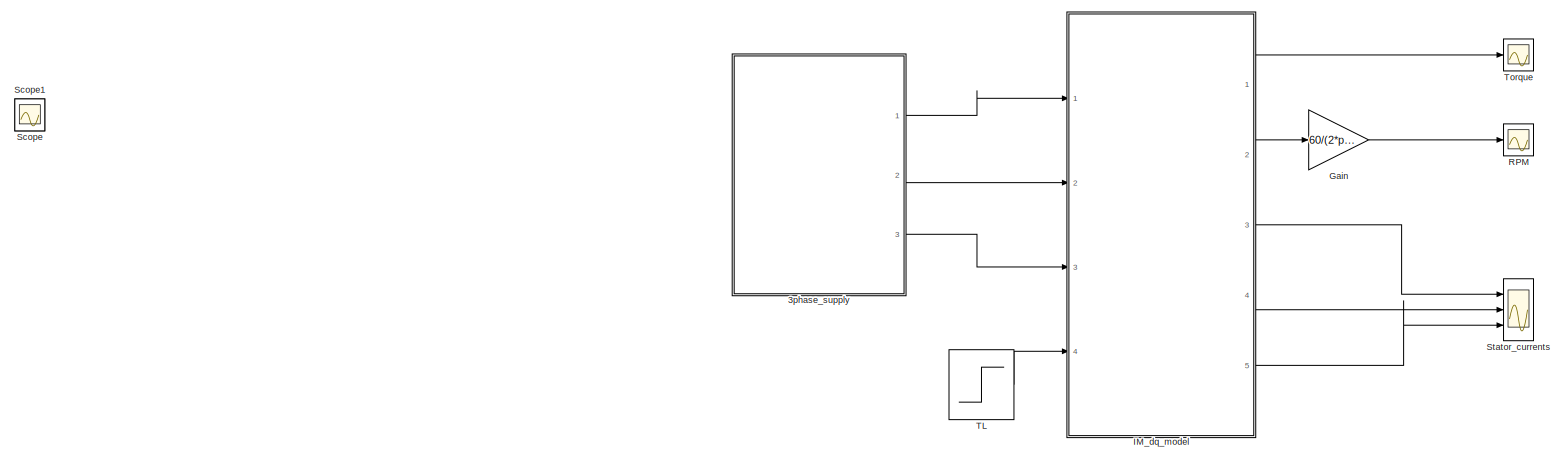
[diagram: root canvas - part 1/1, most of the canvas]
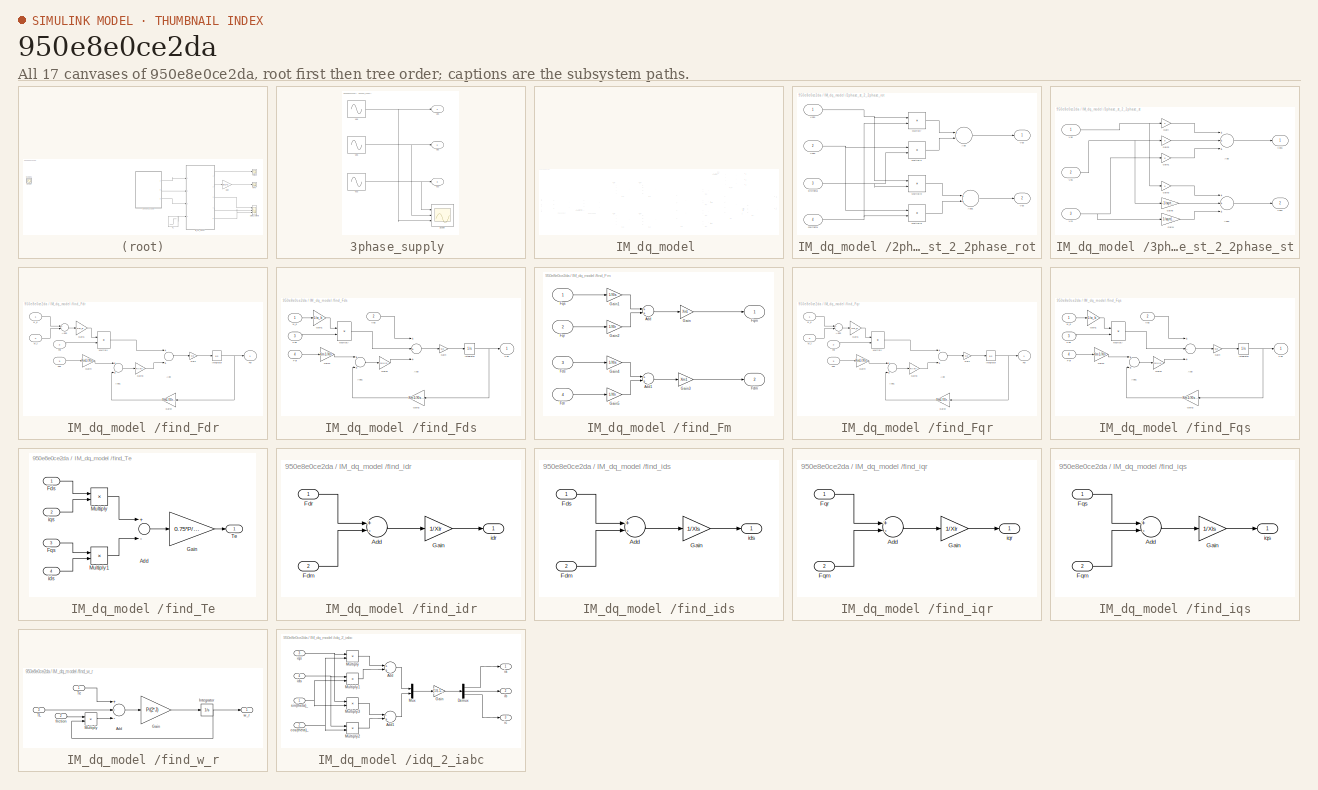
[diagram: thumbnail index - all 17 canvases of the model, root first then tree order]
MODEL slx_950e8e0ce2da
KIND model
CONFIG AbsTol = auto
CONFIG EnableMultiTasking = off
CONFIG FixedStep = 0.0001
CONFIG MaxStep = auto
CONFIG MinStep = auto
CONFIG RelTol = 1e-3
CONFIG SampleTimeConstraint = Unconstrained
CONFIG Solver = ode45
CONFIG SolverName = ode45
CONFIG StartTime = 0.0
CONFIG StopTime = 6
BLOCK [SubSystem] 3phase_supply 
  Ports = [0, 3]
  RequestExecContextInheritance = off
BLOCK [Scope] 3phase_supply /Scope
  Floating = off
  NumInputPorts = 3
  Ports = [3]
  ScopeSpecificationString = Simulink.scopes.TimeScopeBlockCfg('CurrentConfiguration', extmgr.ConfigurationSet(extmgr.Configuration('Core','General UI',true),extmgr.Configuration('Core','Source UI',true),extmgr.Configuration('Sources','WiredSimulink',true),extmgr.Configuration('Visuals','Time Domain',true,'SerializedDisplays',{struct('MinYLimReal','-433.0127','MaxYLimReal','433.0127','YLabelReal','','MinYLimMag',' 0.00000','M...<+1362ch>
BLOCK [Outport] 3phase_supply /Vas
  IconDisplay = Port number
BLOCK [Outport] 3phase_supply /Vbs
  IconDisplay = Port number
  Port = 2
BLOCK [Outport] 3phase_supply /Vcs
  IconDisplay = Port number
  Port = 3
BLOCK [Sin] 3phase_supply /vas
  Amplitude = Vm
  Frequency = w_e
  Ports = [0, 1]
  SampleTime = 0
BLOCK [Sin] 3phase_supply /vbs
  Amplitude = Vm
  Frequency = w_e
  Phase = -2*pi/3
  Ports = [0, 1]
  SampleTime = 0
BLOCK [Sin] 3phase_supply /vcs
  Amplitude = Vm
  Frequency = w_e
  Phase = 2*pi/3
  Ports = [0, 1]
  SampleTime = 0
BLOCK [Gain] Gain
  Gain = 60/(2*pi)
  OutDataTypeStr = Inherit: Inherit via internal rule
  ParamDataTypeStr = Inherit: Inherit via internal rule
  SaturateOnIntegerOverflow = off
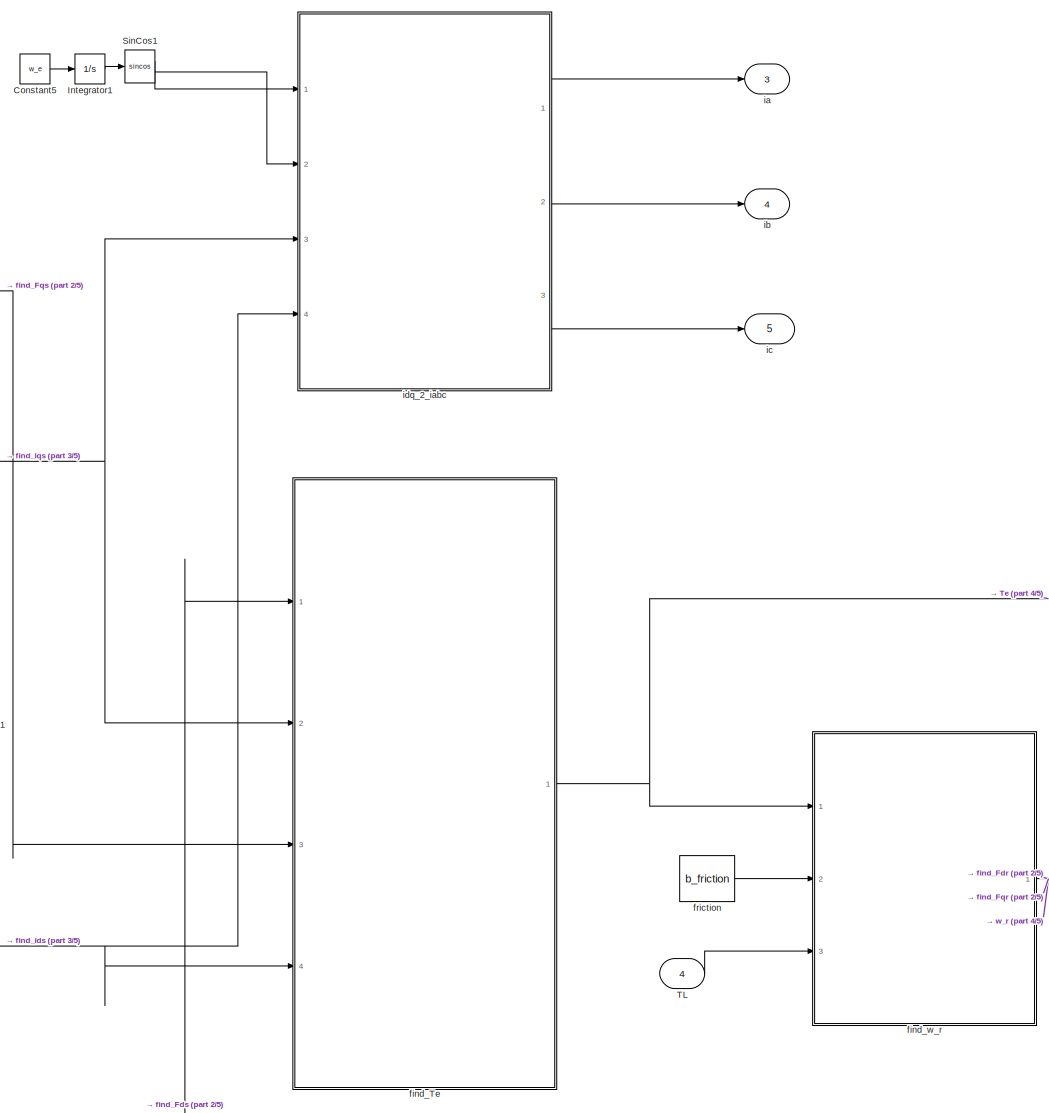
[diagram: IM_dq_model  - part 1/5, right side, full height]
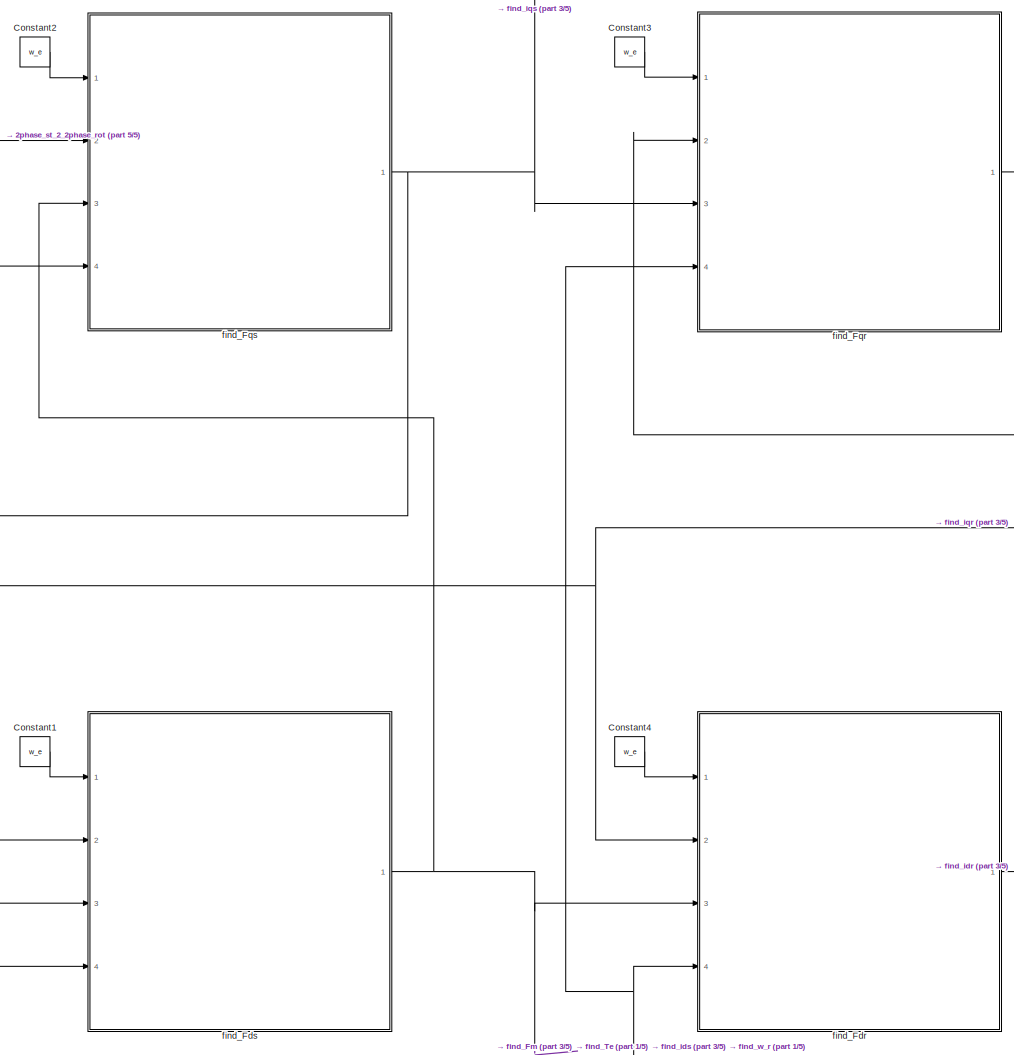
[diagram: IM_dq_model  - part 2/5, central region]
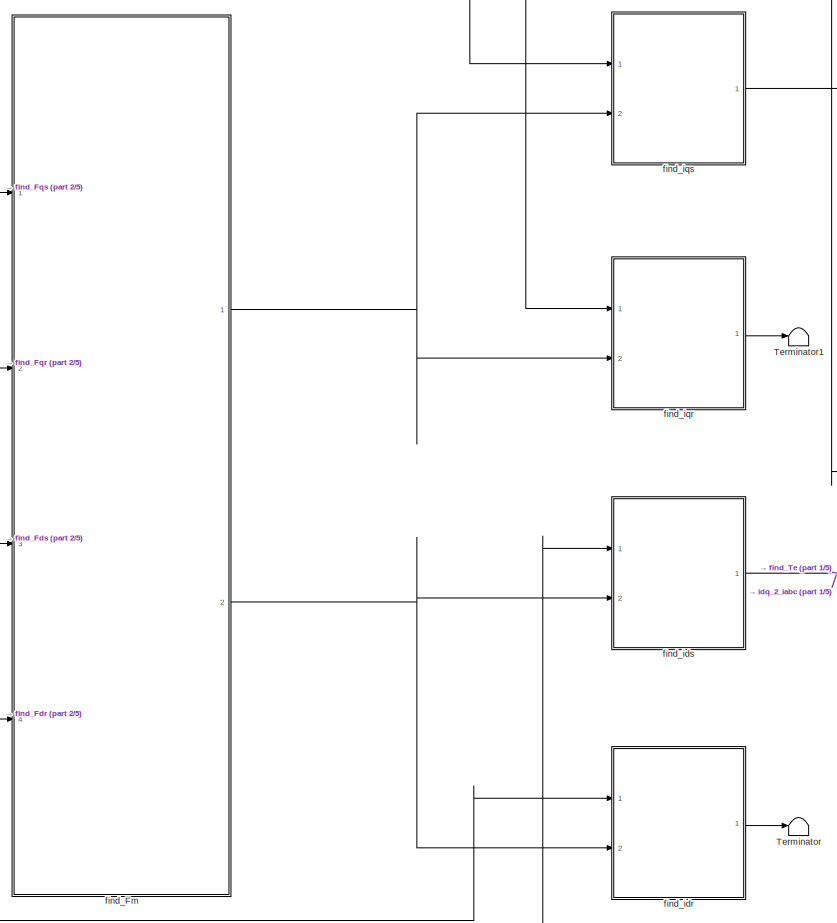
[diagram: IM_dq_model  - part 3/5, central region]
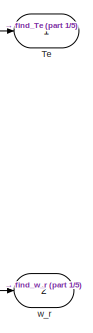
[diagram: IM_dq_model  - part 4/5, middle right region]
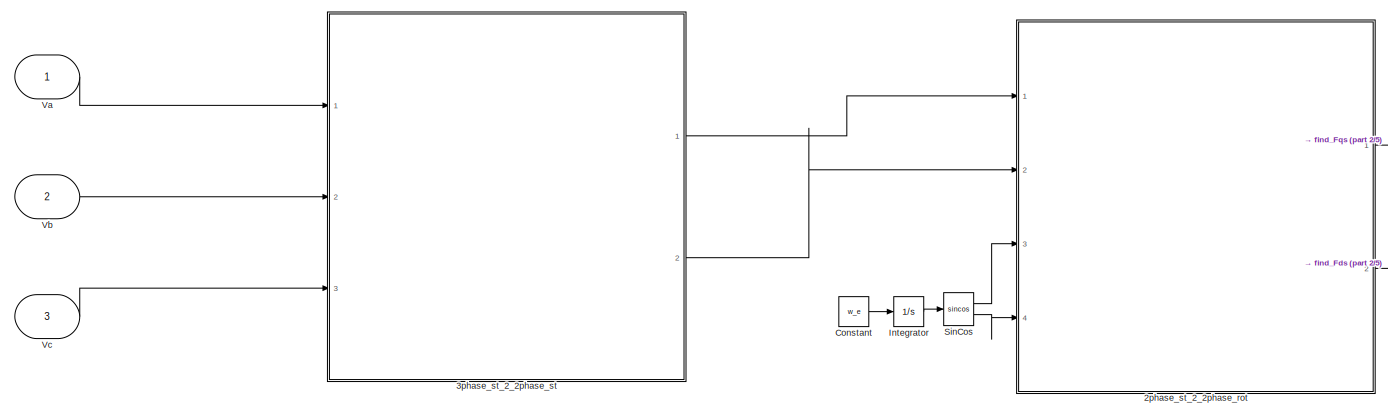
[diagram: IM_dq_model  - part 5/5, middle left region]
BLOCK [SubSystem] IM_dq_model 
  Ports = [4, 5]
  RequestExecContextInheritance = off
BLOCK [SubSystem] IM_dq_model /2phase_st_2_2phase_rot
  Ports = [4, 2]
  RequestExecContextInheritance = off
BLOCK [Sum] IM_dq_model /2phase_st_2_2phase_rot/Add
  InputSameDT = off
  Inputs = +-
  OutDataTypeStr = Inherit: Inherit via internal rule
  Ports = [2, 1]
  SaturateOnIntegerOverflow = off
BLOCK [Sum] IM_dq_model /2phase_st_2_2phase_rot/Add1
  InputSameDT = off
  OutDataTypeStr = Inherit: Inherit via internal rule
  Ports = [2, 1]
  SaturateOnIntegerOverflow = off
BLOCK [Product] IM_dq_model /2phase_st_2_2phase_rot/Multiply
  InputSameDT = off
  OutDataTypeStr = Inherit: Inherit via internal rule
  Ports = [2, 1]
  RndMeth = Floor
  SaturateOnIntegerOverflow = off
BLOCK [Product] IM_dq_model /2phase_st_2_2phase_rot/Multiply1
  InputSameDT = off
  OutDataTypeStr = Inherit: Inherit via internal rule
  Ports = [2, 1]
  RndMeth = Floor
  SaturateOnIntegerOverflow = off
BLOCK [Product] IM_dq_model /2phase_st_2_2phase_rot/Multiply2
  InputSameDT = off
  OutDataTypeStr = Inherit: Inherit via internal rule
  Ports = [2, 1]
  RndMeth = Floor
  SaturateOnIntegerOverflow = off
BLOCK [Product] IM_dq_model /2phase_st_2_2phase_rot/Multiply3
  InputSameDT = off
  OutDataTypeStr = Inherit: Inherit via internal rule
  Ports = [2, 1]
  RndMeth = Floor
  SaturateOnIntegerOverflow = off
BLOCK [Outport] IM_dq_model /2phase_st_2_2phase_rot/Vds
  IconDisplay = Port number
  Port = 2
BLOCK [Inport] IM_dq_model /2phase_st_2_2phase_rot/Vdss
  IconDisplay = Port number
  Port = 2
BLOCK [Outport] IM_dq_model /2phase_st_2_2phase_rot/Vqs
  IconDisplay = Port number
BLOCK [Inport] IM_dq_model /2phase_st_2_2phase_rot/Vqss
  IconDisplay = Port number
BLOCK [Inport] IM_dq_model /2phase_st_2_2phase_rot/cos(theta)
  IconDisplay = Port number
  Port = 4
BLOCK [Inport] IM_dq_model /2phase_st_2_2phase_rot/sin(theta)
  IconDisplay = Port number
  Port = 3
BLOCK [SubSystem] IM_dq_model /3phase_st_2_2phase_st
  Ports = [3, 2]
  RequestExecContextInheritance = off
BLOCK [Sum] IM_dq_model /3phase_st_2_2phase_st/Add
  InputSameDT = off
  Inputs = +++
  OutDataTypeStr = Inherit: Inherit via internal rule
  Ports = [3, 1]
  SaturateOnIntegerOverflow = off
BLOCK [Sum] IM_dq_model /3phase_st_2_2phase_st/Add1
  InputSameDT = off
  Inputs = +++
  OutDataTypeStr = Inherit: Inherit via internal rule
  Ports = [3, 1]
  SaturateOnIntegerOverflow = off
BLOCK [Gain] IM_dq_model /3phase_st_2_2phase_st/Gain
  OutDataTypeStr = Inherit: Inherit via internal rule
  ParamDataTypeStr = Inherit: Inherit via internal rule
  SaturateOnIntegerOverflow = off
BLOCK [Gain] IM_dq_model /3phase_st_2_2phase_st/Gain1
  Gain = 0
  OutDataTypeStr = Inherit: Inherit via internal rule
  ParamDataTypeStr = Inherit: Inherit via internal rule
  SaturateOnIntegerOverflow = off
BLOCK [Gain] IM_dq_model /3phase_st_2_2phase_st/Gain2
  Gain = 0
  OutDataTypeStr = Inherit: Inherit via internal rule
  ParamDataTypeStr = Inherit: Inherit via internal rule
  SaturateOnIntegerOverflow = off
BLOCK [Gain] IM_dq_model /3phase_st_2_2phase_st/Gain3
  Gain = 0
  OutDataTypeStr = Inherit: Inherit via internal rule
  ParamDataTypeStr = Inherit: Inherit via internal rule
  SaturateOnIntegerOverflow = off
BLOCK [Gain] IM_dq_model /3phase_st_2_2phase_st/Gain4
  Gain = 1/sqrt(3)
  OutDataTypeStr = Inherit: Inherit via internal rule
  ParamDataTypeStr = Inherit: Inherit via internal rule
  SaturateOnIntegerOverflow = off
BLOCK [Gain] IM_dq_model /3phase_st_2_2phase_st/Gain5
  Gain = -1/sqrt(3)
  OutDataTypeStr = Inherit: Inherit via internal rule
  ParamDataTypeStr = Inherit: Inherit via internal rule
  SaturateOnIntegerOverflow = off
BLOCK [Inport] IM_dq_model /3phase_st_2_2phase_st/Vas
  IconDisplay = Port number
BLOCK [Inport] IM_dq_model /3phase_st_2_2phase_st/Vbs
  IconDisplay = Port number
  Port = 2
BLOCK [Inport] IM_dq_model /3phase_st_2_2phase_st/Vcs
  IconDisplay = Port number
  Port = 3
BLOCK [Outport] IM_dq_model /3phase_st_2_2phase_st/Vdss
  IconDisplay = Port number
  Port = 2
BLOCK [Outport] IM_dq_model /3phase_st_2_2phase_st/Vqss
  IconDisplay = Port number
BLOCK [Constant] IM_dq_model /Constant
  Value = w_e
BLOCK [Constant] IM_dq_model /Constant1
  Value = w_e
BLOCK [Constant] IM_dq_model /Constant2
  Value = w_e
BLOCK [Constant] IM_dq_model /Constant3
  Value = w_e
BLOCK [Constant] IM_dq_model /Constant4
  Value = w_e
BLOCK [Constant] IM_dq_model /Constant5
  Value = w_e
BLOCK [Integrator] IM_dq_model /Integrator
  Ports = [1, 1]
BLOCK [Integrator] IM_dq_model /Integrator1
  Ports = [1, 1]
BLOCK [Trigonometry] IM_dq_model /SinCos
  Operator = sincos
  Ports = [1, 2]
BLOCK [Trigonometry] IM_dq_model /SinCos1
  Operator = sincos
  Ports = [1, 2]
BLOCK [Inport] IM_dq_model /TL 
  IconDisplay = Port number
  Port = 4
BLOCK [Outport] IM_dq_model /Te
  IconDisplay = Port number
BLOCK [Terminator] IM_dq_model /Terminator
BLOCK [Terminator] IM_dq_model /Terminator1
BLOCK [Inport] IM_dq_model /Va
  IconDisplay = Port number
BLOCK [Inport] IM_dq_model /Vb
  IconDisplay = Port number
  Port = 2
BLOCK [Inport] IM_dq_model /Vc
  IconDisplay = Port number
  Port = 3
BLOCK [SubSystem] IM_dq_model /find_Fdr
  Ports = [4, 1]
  RequestExecContextInheritance = off
BLOCK [Sum] IM_dq_model /find_Fdr/Add
  InputSameDT = off
  OutDataTypeStr = Inherit: Inherit via internal rule
  Ports = [2, 1]
  SaturateOnIntegerOverflow = off
BLOCK [Sum] IM_dq_model /find_Fdr/Add1
  InputSameDT = off
  OutDataTypeStr = Inherit: Inherit via internal rule
  Ports = [2, 1]
  SaturateOnIntegerOverflow = off
BLOCK [Sum] IM_dq_model /find_Fdr/Add2
  InputSameDT = off
  Inputs = +-
  OutDataTypeStr = Inherit: Inherit via internal rule
  Ports = [2, 1]
  SaturateOnIntegerOverflow = off
BLOCK [Outport] IM_dq_model /find_Fdr/Fdr 
  IconDisplay = Port number
BLOCK [Inport] IM_dq_model /find_Fdr/Fds
  IconDisplay = Port number
  Port = 3
BLOCK [Inport] IM_dq_model /find_Fdr/Fqr
  IconDisplay = Port number
  Port = 2
BLOCK [Gain] IM_dq_model /find_Fdr/Gain
  Gain = w_b
  OutDataTypeStr = Inherit: Inherit via internal rule
  ParamDataTypeStr = Inherit: Inherit via internal rule
  SaturateOnIntegerOverflow = off
BLOCK [Gain] IM_dq_model /find_Fdr/Gain1
  Gain = 1/w_b
  OutDataTypeStr = Inherit: Inherit via internal rule
  ParamDataTypeStr = Inherit: Inherit via internal rule
  SaturateOnIntegerOverflow = off
BLOCK [Gain] IM_dq_model /find_Fdr/Gain2
  Gain = Xm1/Xlr-1
  OutDataTypeStr = Inherit: Inherit via internal rule
  ParamDataTypeStr = Inherit: Inherit via internal rule
  SaturateOnIntegerOverflow = off
BLOCK [Gain] IM_dq_model /find_Fdr/Gain3
  Gain = Rr/Xlr
  OutDataTypeStr = Inherit: Inherit via internal rule
  ParamDataTypeStr = Inherit: Inherit via internal rule
  SaturateOnIntegerOverflow = off
BLOCK [Gain] IM_dq_model /find_Fdr/Gain4
  Gain = Xm1/Xls
  OutDataTypeStr = Inherit: Inherit via internal rule
  ParamDataTypeStr = Inherit: Inherit via internal rule
  SaturateOnIntegerOverflow = off
BLOCK [Integrator] IM_dq_model /find_Fdr/Integrator
  Ports = [1, 1]
BLOCK [Product] IM_dq_model /find_Fdr/Multiply
  InputSameDT = off
  OutDataTypeStr = Inherit: Inherit via internal rule
  Ports = [2, 1]
  RndMeth = Floor
  SaturateOnIntegerOverflow = off
BLOCK [Inport] IM_dq_model /find_Fdr/w_e
  IconDisplay = Port number
BLOCK [Inport] IM_dq_model /find_Fdr/w_r
  IconDisplay = Port number
  Port = 4
BLOCK [SubSystem] IM_dq_model /find_Fds
  Ports = [4, 1]
  RequestExecContextInheritance = off
BLOCK [Sum] IM_dq_model /find_Fds/Add
  InputSameDT = off
  Inputs = +++
  OutDataTypeStr = Inherit: Inherit via internal rule
  Ports = [3, 1]
  SaturateOnIntegerOverflow = off
BLOCK [Sum] IM_dq_model /find_Fds/Add1
  InputSameDT = off
  OutDataTypeStr = Inherit: Inherit via internal rule
  Ports = [2, 1]
  SaturateOnIntegerOverflow = off
BLOCK [Inport] IM_dq_model /find_Fds/Fdr
  IconDisplay = Port number
  Port = 4
BLOCK [Outport] IM_dq_model /find_Fds/Fds 
  IconDisplay = Port number
BLOCK [Inport] IM_dq_model /find_Fds/Fqs
  IconDisplay = Port number
  Port = 3
BLOCK [Gain] IM_dq_model /find_Fds/Gain
  Gain = w_b
  OutDataTypeStr = Inherit: Inherit via internal rule
  ParamDataTypeStr = Inherit: Inherit via internal rule
  SaturateOnIntegerOverflow = off
BLOCK [Gain] IM_dq_model /find_Fds/Gain1
  Gain = 1/w_b
  OutDataTypeStr = Inherit: Inherit via internal rule
  ParamDataTypeStr = Inherit: Inherit via internal rule
  SaturateOnIntegerOverflow = off
BLOCK [Gain] IM_dq_model /find_Fds/Gain2
  Gain = Xm1/Xls-1
  OutDataTypeStr = Inherit: Inherit via internal rule
  ParamDataTypeStr = Inherit: Inherit via internal rule
  SaturateOnIntegerOverflow = off
BLOCK [Gain] IM_dq_model /find_Fds/Gain3
  Gain = Rs/Xls
  OutDataTypeStr = Inherit: Inherit via internal rule
  ParamDataTypeStr = Inherit: Inherit via internal rule
  SaturateOnIntegerOverflow = off
BLOCK [Gain] IM_dq_model /find_Fds/Gain4
  Gain = Xm1/Xlr
  OutDataTypeStr = Inherit: Inherit via internal rule
  ParamDataTypeStr = Inherit: Inherit via internal rule
  SaturateOnIntegerOverflow = off
BLOCK [Integrator] IM_dq_model /find_Fds/Integrator
  Ports = [1, 1]
BLOCK [Product] IM_dq_model /find_Fds/Multiply
  InputSameDT = off
  OutDataTypeStr = Inherit: Inherit via internal rule
  Ports = [2, 1]
  RndMeth = Floor
  SaturateOnIntegerOverflow = off
BLOCK [Inport] IM_dq_model /find_Fds/Vds
  IconDisplay = Port number
  Port = 2
BLOCK [Inport] IM_dq_model /find_Fds/w_e
  IconDisplay = Port number
BLOCK [SubSystem] IM_dq_model /find_Fm
  Ports = [4, 2]
  RequestExecContextInheritance = off
BLOCK [Sum] IM_dq_model /find_Fm/Add
  InputSameDT = off
  OutDataTypeStr = Inherit: Inherit via internal rule
  Ports = [2, 1]
  SaturateOnIntegerOverflow = off
BLOCK [Sum] IM_dq_model /find_Fm/Add1
  InputSameDT = off
  OutDataTypeStr = Inherit: Inherit via internal rule
  Ports = [2, 1]
  SaturateOnIntegerOverflow = off
BLOCK [Outport] IM_dq_model /find_Fm/Fdm
  IconDisplay = Port number
  Port = 2
BLOCK [Inport] IM_dq_model /find_Fm/Fdr
  IconDisplay = Port number
  Port = 4
BLOCK [Inport] IM_dq_model /find_Fm/Fds
  IconDisplay = Port number
  Port = 3
BLOCK [Outport] IM_dq_model /find_Fm/Fqm
  IconDisplay = Port number
BLOCK [Inport] IM_dq_model /find_Fm/Fqr
  IconDisplay = Port number
  Port = 2
BLOCK [Inport] IM_dq_model /find_Fm/Fqs
  IconDisplay = Port number
BLOCK [Gain] IM_dq_model /find_Fm/Gain
  Gain = Xm1
  OutDataTypeStr = Inherit: Inherit via internal rule
  ParamDataTypeStr = Inherit: Inherit via internal rule
  SaturateOnIntegerOverflow = off
BLOCK [Gain] IM_dq_model /find_Fm/Gain1
  Gain = 1/Xls
  OutDataTypeStr = Inherit: Inherit via internal rule
  ParamDataTypeStr = Inherit: Inherit via internal rule
  SaturateOnIntegerOverflow = off
BLOCK [Gain] IM_dq_model /find_Fm/Gain2
  Gain = 1/Xlr
  OutDataTypeStr = Inherit: Inherit via internal rule
  ParamDataTypeStr = Inherit: Inherit via internal rule
  SaturateOnIntegerOverflow = off
BLOCK [Gain] IM_dq_model /find_Fm/Gain3
  Gain = Xm1
  OutDataTypeStr = Inherit: Inherit via internal rule
  ParamDataTypeStr = Inherit: Inherit via internal rule
  SaturateOnIntegerOverflow = off
BLOCK [Gain] IM_dq_model /find_Fm/Gain4
  Gain = 1/Xls
  OutDataTypeStr = Inherit: Inherit via internal rule
  ParamDataTypeStr = Inherit: Inherit via internal rule
  SaturateOnIntegerOverflow = off
BLOCK [Gain] IM_dq_model /find_Fm/Gain5
  Gain = 1/Xlr
  OutDataTypeStr = Inherit: Inherit via internal rule
  ParamDataTypeStr = Inherit: Inherit via internal rule
  SaturateOnIntegerOverflow = off
BLOCK [SubSystem] IM_dq_model /find_Fqr
  Ports = [4, 1]
  RequestExecContextInheritance = off
BLOCK [Sum] IM_dq_model /find_Fqr/Add
  InputSameDT = off
  OutDataTypeStr = Inherit: Inherit via internal rule
  Ports = [2, 1]
  SaturateOnIntegerOverflow = off
BLOCK [Sum] IM_dq_model /find_Fqr/Add1
  InputSameDT = off
  OutDataTypeStr = Inherit: Inherit via internal rule
  Ports = [2, 1]
  SaturateOnIntegerOverflow = off
BLOCK [Sum] IM_dq_model /find_Fqr/Add2
  InputSameDT = off
  Inputs = +-
  OutDataTypeStr = Inherit: Inherit via internal rule
  Ports = [2, 1]
  SaturateOnIntegerOverflow = off
BLOCK [Inport] IM_dq_model /find_Fqr/Fdr
  IconDisplay = Port number
  Port = 2
BLOCK [Outport] IM_dq_model /find_Fqr/Fqr 
  IconDisplay = Port number
BLOCK [Inport] IM_dq_model /find_Fqr/Fqs
  IconDisplay = Port number
  Port = 3
BLOCK [Gain] IM_dq_model /find_Fqr/Gain
  Gain = w_b
  OutDataTypeStr = Inherit: Inherit via internal rule
  ParamDataTypeStr = Inherit: Inherit via internal rule
  SaturateOnIntegerOverflow = off
BLOCK [Gain] IM_dq_model /find_Fqr/Gain1
  Gain = -1/w_b
  OutDataTypeStr = Inherit: Inherit via internal rule
  ParamDataTypeStr = Inherit: Inherit via internal rule
  SaturateOnIntegerOverflow = off
BLOCK [Gain] IM_dq_model /find_Fqr/Gain2
  Gain = Xm1/Xlr-1
  OutDataTypeStr = Inherit: Inherit via internal rule
  ParamDataTypeStr = Inherit: Inherit via internal rule
  SaturateOnIntegerOverflow = off
BLOCK [Gain] IM_dq_model /find_Fqr/Gain3
  Gain = Rr/Xlr
  OutDataTypeStr = Inherit: Inherit via internal rule
  ParamDataTypeStr = Inherit: Inherit via internal rule
  SaturateOnIntegerOverflow = off
BLOCK [Gain] IM_dq_model /find_Fqr/Gain4
  Gain = Xm1/Xls
  OutDataTypeStr = Inherit: Inherit via internal rule
  ParamDataTypeStr = Inherit: Inherit via internal rule
  SaturateOnIntegerOverflow = off
BLOCK [Integrator] IM_dq_model /find_Fqr/Integrator
  Ports = [1, 1]
BLOCK [Product] IM_dq_model /find_Fqr/Multiply
  InputSameDT = off
  OutDataTypeStr = Inherit: Inherit via internal rule
  Ports = [2, 1]
  RndMeth = Floor
  SaturateOnIntegerOverflow = off
BLOCK [Inport] IM_dq_model /find_Fqr/w_e
  IconDisplay = Port number
BLOCK [Inport] IM_dq_model /find_Fqr/w_r
  IconDisplay = Port number
  Port = 4
BLOCK [SubSystem] IM_dq_model /find_Fqs
  Ports = [4, 1]
  RequestExecContextInheritance = off
BLOCK [Sum] IM_dq_model /find_Fqs/Add
  InputSameDT = off
  Inputs = +-+
  OutDataTypeStr = Inherit: Inherit via internal rule
  Ports = [3, 1]
  SaturateOnIntegerOverflow = off
BLOCK [Sum] IM_dq_model /find_Fqs/Add1
  InputSameDT = off
  OutDataTypeStr = Inherit: Inherit via internal rule
  Ports = [2, 1]
  SaturateOnIntegerOverflow = off
BLOCK [Inport] IM_dq_model /find_Fqs/Fds
  IconDisplay = Port number
  Port = 3
BLOCK [Inport] IM_dq_model /find_Fqs/Fqr
  IconDisplay = Port number
  Port = 4
BLOCK [Outport] IM_dq_model /find_Fqs/Fqs
  IconDisplay = Port number
BLOCK [Gain] IM_dq_model /find_Fqs/Gain
  Gain = w_b
  OutDataTypeStr = Inherit: Inherit via internal rule
  ParamDataTypeStr = Inherit: Inherit via internal rule
  SaturateOnIntegerOverflow = off
BLOCK [Gain] IM_dq_model /find_Fqs/Gain1
  Gain = 1/w_b
  OutDataTypeStr = Inherit: Inherit via internal rule
  ParamDataTypeStr = Inherit: Inherit via internal rule
  SaturateOnIntegerOverflow = off
BLOCK [Gain] IM_dq_model /find_Fqs/Gain2
  Gain = Xm1/Xls-1
  OutDataTypeStr = Inherit: Inherit via internal rule
  ParamDataTypeStr = Inherit: Inherit via internal rule
  SaturateOnIntegerOverflow = off
BLOCK [Gain] IM_dq_model /find_Fqs/Gain3
  Gain = Rs/Xls
  OutDataTypeStr = Inherit: Inherit via internal rule
  ParamDataTypeStr = Inherit: Inherit via internal rule
  SaturateOnIntegerOverflow = off
BLOCK [Gain] IM_dq_model /find_Fqs/Gain4
  Gain = Xm1/Xlr
  OutDataTypeStr = Inherit: Inherit via internal rule
  ParamDataTypeStr = Inherit: Inherit via internal rule
  SaturateOnIntegerOverflow = off
BLOCK [Integrator] IM_dq_model /find_Fqs/Integrator
  Ports = [1, 1]
BLOCK [Product] IM_dq_model /find_Fqs/Multiply
  InputSameDT = off
  OutDataTypeStr = Inherit: Inherit via internal rule
  Ports = [2, 1]
  RndMeth = Floor
  SaturateOnIntegerOverflow = off
BLOCK [Inport] IM_dq_model /find_Fqs/Vqs
  IconDisplay = Port number
  Port = 2
BLOCK [Inport] IM_dq_model /find_Fqs/w_e
  IconDisplay = Port number
BLOCK [SubSystem] IM_dq_model /find_Te
  Ports = [4, 1]
  RequestExecContextInheritance = off
BLOCK [Sum] IM_dq_model /find_Te/Add
  InputSameDT = off
  Inputs = +-
  OutDataTypeStr = Inherit: Inherit via internal rule
  Ports = [2, 1]
  SaturateOnIntegerOverflow = off
BLOCK [Inport] IM_dq_model /find_Te/Fds
  IconDisplay = Port number
BLOCK [Inport] IM_dq_model /find_Te/Fqs
  IconDisplay = Port number
  Port = 3
BLOCK [Gain] IM_dq_model /find_Te/Gain
  Gain = 0.75*P/w_b
  OutDataTypeStr = Inherit: Inherit via internal rule
  ParamDataTypeStr = Inherit: Inherit via internal rule
  SaturateOnIntegerOverflow = off
BLOCK [Product] IM_dq_model /find_Te/Multiply
  InputSameDT = off
  OutDataTypeStr = Inherit: Inherit via internal rule
  Ports = [2, 1]
  RndMeth = Floor
  SaturateOnIntegerOverflow = off
BLOCK [Product] IM_dq_model /find_Te/Multiply1
  InputSameDT = off
  OutDataTypeStr = Inherit: Inherit via internal rule
  Ports = [2, 1]
  RndMeth = Floor
  SaturateOnIntegerOverflow = off
BLOCK [Outport] IM_dq_model /find_Te/Te
  IconDisplay = Port number
BLOCK [Inport] IM_dq_model /find_Te/ids
  IconDisplay = Port number
  Port = 4
BLOCK [Inport] IM_dq_model /find_Te/iqs
  IconDisplay = Port number
  Port = 2
BLOCK [SubSystem] IM_dq_model /find_idr
  Ports = [2, 1]
  RequestExecContextInheritance = off
BLOCK [Sum] IM_dq_model /find_idr/Add
  InputSameDT = off
  Inputs = +-
  OutDataTypeStr = Inherit: Inherit via internal rule
  Ports = [2, 1]
  SaturateOnIntegerOverflow = off
BLOCK [Inport] IM_dq_model /find_idr/Fdm
  IconDisplay = Port number
  Port = 2
BLOCK [Inport] IM_dq_model /find_idr/Fdr
  IconDisplay = Port number
BLOCK [Gain] IM_dq_model /find_idr/Gain
  Gain = 1/Xlr
  OutDataTypeStr = Inherit: Inherit via internal rule
  ParamDataTypeStr = Inherit: Inherit via internal rule
  SaturateOnIntegerOverflow = off
BLOCK [Outport] IM_dq_model /find_idr/idr
  IconDisplay = Port number
BLOCK [SubSystem] IM_dq_model /find_ids
  Ports = [2, 1]
  RequestExecContextInheritance = off
BLOCK [Sum] IM_dq_model /find_ids/Add
  InputSameDT = off
  Inputs = +-
  OutDataTypeStr = Inherit: Inherit via internal rule
  Ports = [2, 1]
  SaturateOnIntegerOverflow = off
BLOCK [Inport] IM_dq_model /find_ids/Fdm
  IconDisplay = Port number
  Port = 2
BLOCK [Inport] IM_dq_model /find_ids/Fds
  IconDisplay = Port number
BLOCK [Gain] IM_dq_model /find_ids/Gain
  Gain = 1/Xls
  OutDataTypeStr = Inherit: Inherit via internal rule
  ParamDataTypeStr = Inherit: Inherit via internal rule
  SaturateOnIntegerOverflow = off
BLOCK [Outport] IM_dq_model /find_ids/ids
  IconDisplay = Port number
BLOCK [SubSystem] IM_dq_model /find_iqr
  Ports = [2, 1]
  RequestExecContextInheritance = off
BLOCK [Sum] IM_dq_model /find_iqr/Add
  InputSameDT = off
  Inputs = +-
  OutDataTypeStr = Inherit: Inherit via internal rule
  Ports = [2, 1]
  SaturateOnIntegerOverflow = off
BLOCK [Inport] IM_dq_model /find_iqr/Fqm
  IconDisplay = Port number
  Port = 2
BLOCK [Inport] IM_dq_model /find_iqr/Fqr
  IconDisplay = Port number
BLOCK [Gain] IM_dq_model /find_iqr/Gain
  Gain = 1/Xlr
  OutDataTypeStr = Inherit: Inherit via internal rule
  ParamDataTypeStr = Inherit: Inherit via internal rule
  SaturateOnIntegerOverflow = off
BLOCK [Outport] IM_dq_model /find_iqr/iqr
  IconDisplay = Port number
BLOCK [SubSystem] IM_dq_model /find_iqs
  Ports = [2, 1]
  RequestExecContextInheritance = off
BLOCK [Sum] IM_dq_model /find_iqs/Add
  InputSameDT = off
  Inputs = +-
  OutDataTypeStr = Inherit: Inherit via internal rule
  Ports = [2, 1]
  SaturateOnIntegerOverflow = off
BLOCK [Inport] IM_dq_model /find_iqs/Fqm
  IconDisplay = Port number
  Port = 2
BLOCK [Inport] IM_dq_model /find_iqs/Fqs
  IconDisplay = Port number
BLOCK [Gain] IM_dq_model /find_iqs/Gain
  Gain = 1/Xls
  OutDataTypeStr = Inherit: Inherit via internal rule
  ParamDataTypeStr = Inherit: Inherit via internal rule
  SaturateOnIntegerOverflow = off
BLOCK [Outport] IM_dq_model /find_iqs/iqs
  IconDisplay = Port number
BLOCK [SubSystem] IM_dq_model /find_w_r
  Ports = [3, 1]
  RequestExecContextInheritance = off
BLOCK [Sum] IM_dq_model /find_w_r/Add
  InputSameDT = off
  Inputs = +--
  OutDataTypeStr = Inherit: Inherit via internal rule
  Ports = [3, 1]
  SaturateOnIntegerOverflow = off
BLOCK [Gain] IM_dq_model /find_w_r/Gain
  Gain = P/(2*J)
  OutDataTypeStr = Inherit: Inherit via internal rule
  ParamDataTypeStr = Inherit: Inherit via internal rule
  SaturateOnIntegerOverflow = off
BLOCK [Integrator] IM_dq_model /find_w_r/Integrator
  Ports = [1, 1]
  UpperSaturationLimit = 0
BLOCK [Product] IM_dq_model /find_w_r/Multiply
  InputSameDT = off
  OutDataTypeStr = Inherit: Inherit via internal rule
  Ports = [2, 1]
  RndMeth = Floor
  SaturateOnIntegerOverflow = off
BLOCK [Inport] IM_dq_model /find_w_r/TL 
  IconDisplay = Port number
  Port = 3
BLOCK [Inport] IM_dq_model /find_w_r/Te
  IconDisplay = Port number
BLOCK [Inport] IM_dq_model /find_w_r/friction
  IconDisplay = Port number
  Port = 2
BLOCK [Outport] IM_dq_model /find_w_r/w_r
  IconDisplay = Port number
BLOCK [Constant] IM_dq_model /friction 
  Value = b_friction
BLOCK [Outport] IM_dq_model /ia
  IconDisplay = Port number
  Port = 3
BLOCK [Outport] IM_dq_model /ib
  IconDisplay = Port number
  Port = 4
BLOCK [Outport] IM_dq_model /ic
  IconDisplay = Port number
  Port = 5
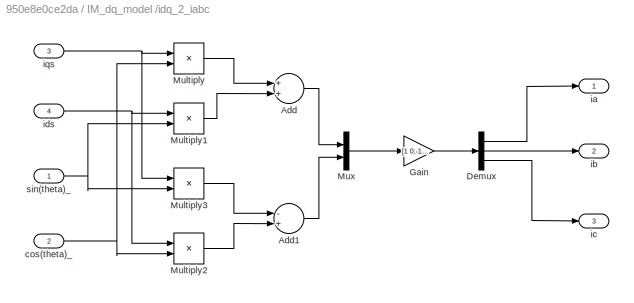
BLOCK [SubSystem] IM_dq_model /idq_2_iabc
  Ports = [4, 3]
  RequestExecContextInheritance = off
BLOCK [Sum] IM_dq_model /idq_2_iabc/Add
  InputSameDT = off
  OutDataTypeStr = Inherit: Inherit via internal rule
  Ports = [2, 1]
  SaturateOnIntegerOverflow = off
BLOCK [Sum] IM_dq_model /idq_2_iabc/Add1
  InputSameDT = off
  Inputs = -+
  OutDataTypeStr = Inherit: Inherit via internal rule
  Ports = [2, 1]
  SaturateOnIntegerOverflow = off
BLOCK [Demux] IM_dq_model /idq_2_iabc/Demux
  DisplayOption = bar
  Outputs = 3
  Ports = [1, 3]
BLOCK [Gain] IM_dq_model /idq_2_iabc/Gain
  Gain = [1 0;-1/2 -sqrt(3)/2;-1/2 sqrt(3)/2]
  Multiplication = Matrix(K*u)
  OutDataTypeStr = Inherit: Inherit via internal rule
  ParamDataTypeStr = Inherit: Inherit via internal rule
  SaturateOnIntegerOverflow = off
BLOCK [Product] IM_dq_model /idq_2_iabc/Multiply
  InputSameDT = off
  OutDataTypeStr = Inherit: Inherit via internal rule
  Ports = [2, 1]
  RndMeth = Floor
  SaturateOnIntegerOverflow = off
BLOCK [Product] IM_dq_model /idq_2_iabc/Multiply1
  InputSameDT = off
  OutDataTypeStr = Inherit: Inherit via internal rule
  Ports = [2, 1]
  RndMeth = Floor
  SaturateOnIntegerOverflow = off
BLOCK [Product] IM_dq_model /idq_2_iabc/Multiply2
  InputSameDT = off
  OutDataTypeStr = Inherit: Inherit via internal rule
  Ports = [2, 1]
  RndMeth = Floor
  SaturateOnIntegerOverflow = off
BLOCK [Product] IM_dq_model /idq_2_iabc/Multiply3
  InputSameDT = off
  OutDataTypeStr = Inherit: Inherit via internal rule
  Ports = [2, 1]
  RndMeth = Floor
  SaturateOnIntegerOverflow = off
BLOCK [Mux] IM_dq_model /idq_2_iabc/Mux
  DisplayOption = bar
  Inputs = 2
  Ports = [2, 1]
BLOCK [Inport] IM_dq_model /idq_2_iabc/cos(theta)_ 
  IconDisplay = Port number
  Port = 2
BLOCK [Outport] IM_dq_model /idq_2_iabc/ia
  IconDisplay = Port number
BLOCK [Outport] IM_dq_model /idq_2_iabc/ib
  IconDisplay = Port number
  Port = 2
BLOCK [Outport] IM_dq_model /idq_2_iabc/ic
  IconDisplay = Port number
  Port = 3
BLOCK [Inport] IM_dq_model /idq_2_iabc/ids
  IconDisplay = Port number
  Port = 4
BLOCK [Inport] IM_dq_model /idq_2_iabc/iqs
  IconDisplay = Port number
  Port = 3
BLOCK [Inport] IM_dq_model /idq_2_iabc/sin(theta)_ 
  IconDisplay = Port number
BLOCK [Outport] IM_dq_model /w_r
  IconDisplay = Port number
  Port = 2
BLOCK [Scope] RPM 
  Floating = off
  NumInputPorts = 1
  Ports = [1]
  ScopeSpecificationString = Simulink.scopes.TimeScopeBlockCfg('CurrentConfiguration', extmgr.ConfigurationSet(extmgr.Configuration('Core','General UI',true),extmgr.Configuration('Core','Source UI',true),extmgr.Configuration('Sources','WiredSimulink',true,'DataLoggingVariableName','ScopeData3'),extmgr.Configuration('Visuals','Time Domain',true,'SerializedDisplays',{struct('MinYLimReal','-373.13406','MaxYLimReal','3358.20651',...<+1482ch>
BLOCK [Scope] Scope
  Floating = off
  IOType = viewer
  NumInputPorts = 1
  Ports = []
  ScopeSpecificationString = Simulink.scopes.TimeScopeBlockCfg('CurrentConfiguration', extmgr.ConfigurationSet(extmgr.Configuration('Core','General UI',true),extmgr.Configuration('Core','Source UI',true),extmgr.Configuration('Sources','WiredSimulink',true,'DataLoggingVariableName','ScopeData1'),extmgr.Configuration('Visuals','Time Domain',true,'SerializedDisplays',{struct('MinYLimReal','-71.15838','MaxYLimReal','314.15927','Y...<+1630ch>
BLOCK [Scope] Scope1
  Floating = off
  IOType = viewer
  NumInputPorts = 1
  Ports = []
  ScopeSpecificationString = Simulink.scopes.TimeScopeBlockCfg('CurrentConfiguration', extmgr.ConfigurationSet(extmgr.Configuration('Core','General UI',true),extmgr.Configuration('Core','Source UI',true),extmgr.Configuration('Sources','WiredSimulink',true,'DataLoggingVariableName','ScopeData1'),extmgr.Configuration('Visuals','Time Domain',true,'SerializedDisplays',{struct('MinYLimReal','-159.29529','MaxYLimReal','158.02693','...<+1419ch>
BLOCK [Scope] Stator_currents 
  Floating = off
  NumInputPorts = 3
  Ports = [3]
  ScopeSpecificationString = Simulink.scopes.TimeScopeBlockCfg('CurrentConfiguration', extmgr.ConfigurationSet(extmgr.Configuration('Core','General UI',true),extmgr.Configuration('Core','Source UI',true),extmgr.Configuration('Sources','WiredSimulink',true,'DataLoggingVariableName','ScopeData4'),extmgr.Configuration('Visuals','Time Domain',true,'SerializedDisplays',{struct('MinYLimReal','-157.63827','MaxYLimReal','169.12093','...<+1467ch>
BLOCK [Step] TL 
  After = TL
  SampleTime = 0
  Time = 3
BLOCK [Scope] Torque
  Floating = off
  NumInputPorts = 1
  Ports = [1]
  ScopeSpecificationString = Simulink.scopes.TimeScopeBlockCfg('CurrentConfiguration', extmgr.ConfigurationSet(extmgr.Configuration('Core','General UI',true),extmgr.Configuration('Core','Source UI',true),extmgr.Configuration('Sources','WiredSimulink',true,'DataLoggingVariableName','ScopeData2'),extmgr.Configuration('Visuals','Time Domain',true,'SerializedDisplays',{struct('MinYLimReal','-62.37684','MaxYLimReal','247.11137','Y...<+1410ch>
NET 3phase_supply /vas:1 -> 3phase_supply /Scope:3, 3phase_supply /Vas:1
NET 3phase_supply /vbs:1 -> 3phase_supply /Scope:2, 3phase_supply /Vbs:1
NET 3phase_supply /vcs:1 -> 3phase_supply /Scope:1, 3phase_supply /Vcs:1
LINE 3phase_supply :1 -> IM_dq_model :1
LINE 3phase_supply :2 -> IM_dq_model :2
LINE 3phase_supply :3 -> IM_dq_model :3
LINE Gain:1 -> RPM :1
LINE IM_dq_model /2phase_st_2_2phase_rot/Add1:1 -> IM_dq_model /2phase_st_2_2phase_rot/Vds:1
LINE IM_dq_model /2phase_st_2_2phase_rot/Add:1 -> IM_dq_model /2phase_st_2_2phase_rot/Vqs:1
LINE IM_dq_model /2phase_st_2_2phase_rot/Multiply1:1 -> IM_dq_model /2phase_st_2_2phase_rot/Add:2
LINE IM_dq_model /2phase_st_2_2phase_rot/Multiply2:1 -> IM_dq_model /2phase_st_2_2phase_rot/Add1:1
LINE IM_dq_model /2phase_st_2_2phase_rot/Multiply3:1 -> IM_dq_model /2phase_st_2_2phase_rot/Add1:2
LINE IM_dq_model /2phase_st_2_2phase_rot/Multiply:1 -> IM_dq_model /2phase_st_2_2phase_rot/Add:1
NET IM_dq_model /2phase_st_2_2phase_rot/Vdss:1 -> IM_dq_model /2phase_st_2_2phase_rot/Multiply1:1, IM_dq_model /2phase_st_2_2phase_rot/Multiply3:1
NET IM_dq_model /2phase_st_2_2phase_rot/Vqss:1 -> IM_dq_model /2phase_st_2_2phase_rot/Multiply2:1, IM_dq_model /2phase_st_2_2phase_rot/Multiply:1
NET IM_dq_model /2phase_st_2_2phase_rot/cos(theta):1 -> IM_dq_model /2phase_st_2_2phase_rot/Multiply3:2, IM_dq_model /2phase_st_2_2phase_rot/Multiply:2
NET IM_dq_model /2phase_st_2_2phase_rot/sin(theta):1 -> IM_dq_model /2phase_st_2_2phase_rot/Multiply1:2, IM_dq_model /2phase_st_2_2phase_rot/Multiply2:2
LINE IM_dq_model /2phase_st_2_2phase_rot:1 -> IM_dq_model /find_Fqs:2
LINE IM_dq_model /2phase_st_2_2phase_rot:2 -> IM_dq_model /find_Fds:2
LINE IM_dq_model /3phase_st_2_2phase_st/Add1:1 -> IM_dq_model /3phase_st_2_2phase_st/Vdss:1
LINE IM_dq_model /3phase_st_2_2phase_st/Add:1 -> IM_dq_model /3phase_st_2_2phase_st/Vqss:1
LINE IM_dq_model /3phase_st_2_2phase_st/Gain1:1 -> IM_dq_model /3phase_st_2_2phase_st/Add:3
LINE IM_dq_model /3phase_st_2_2phase_st/Gain2:1 -> IM_dq_model /3phase_st_2_2phase_st/Add:2
LINE IM_dq_model /3phase_st_2_2phase_st/Gain3:1 -> IM_dq_model /3phase_st_2_2phase_st/Add1:1
LINE IM_dq_model /3phase_st_2_2phase_st/Gain4:1 -> IM_dq_model /3phase_st_2_2phase_st/Add1:3
LINE IM_dq_model /3phase_st_2_2phase_st/Gain5:1 -> IM_dq_model /3phase_st_2_2phase_st/Add1:2
LINE IM_dq_model /3phase_st_2_2phase_st/Gain:1 -> IM_dq_model /3phase_st_2_2phase_st/Add:1
NET IM_dq_model /3phase_st_2_2phase_st/Vas:1 -> IM_dq_model /3phase_st_2_2phase_st/Gain3:1, IM_dq_model /3phase_st_2_2phase_st/Gain:1
NET IM_dq_model /3phase_st_2_2phase_st/Vbs:1 -> IM_dq_model /3phase_st_2_2phase_st/Gain2:1, IM_dq_model /3phase_st_2_2phase_st/Gain5:1
NET IM_dq_model /3phase_st_2_2phase_st/Vcs:1 -> IM_dq_model /3phase_st_2_2phase_st/Gain1:1, IM_dq_model /3phase_st_2_2phase_st/Gain4:1
LINE IM_dq_model /3phase_st_2_2phase_st:1 -> IM_dq_model /2phase_st_2_2phase_rot:1
LINE IM_dq_model /3phase_st_2_2phase_st:2 -> IM_dq_model /2phase_st_2_2phase_rot:2
LINE IM_dq_model /Constant1:1 -> IM_dq_model /find_Fds:1
LINE IM_dq_model /Constant2:1 -> IM_dq_model /find_Fqs:1
LINE IM_dq_model /Constant3:1 -> IM_dq_model /find_Fqr:1
LINE IM_dq_model /Constant4:1 -> IM_dq_model /find_Fdr:1
LINE IM_dq_model /Constant5:1 -> IM_dq_model /Integrator1:1
LINE IM_dq_model /Constant:1 -> IM_dq_model /Integrator:1
LINE IM_dq_model /Integrator1:1 -> IM_dq_model /SinCos1:1
LINE IM_dq_model /Integrator:1 -> IM_dq_model /SinCos:1
LINE IM_dq_model /SinCos1:1 -> IM_dq_model /idq_2_iabc:1
LINE IM_dq_model /SinCos1:2 -> IM_dq_model /idq_2_iabc:2
LINE IM_dq_model /SinCos:1 -> IM_dq_model /2phase_st_2_2phase_rot:3
LINE IM_dq_model /SinCos:2 -> IM_dq_model /2phase_st_2_2phase_rot:4
LINE IM_dq_model /TL :1 -> IM_dq_model /find_w_r:3
LINE IM_dq_model /Va:1 -> IM_dq_model /3phase_st_2_2phase_st:1
LINE IM_dq_model /Vb:1 -> IM_dq_model /3phase_st_2_2phase_st:2
LINE IM_dq_model /Vc:1 -> IM_dq_model /3phase_st_2_2phase_st:3
LINE IM_dq_model /find_Fdr/Add1:1 -> IM_dq_model /find_Fdr/Gain3:1
LINE IM_dq_model /find_Fdr/Add2:1 -> IM_dq_model /find_Fdr/Gain1:1
LINE IM_dq_model /find_Fdr/Add:1 -> IM_dq_model /find_Fdr/Gain:1
LINE IM_dq_model /find_Fdr/Fds:1 -> IM_dq_model /find_Fdr/Gain4:1
LINE IM_dq_model /find_Fdr/Fqr:1 -> IM_dq_model /find_Fdr/Multiply:2
LINE IM_dq_model /find_Fdr/Gain1:1 -> IM_dq_model /find_Fdr/Multiply:1
LINE IM_dq_model /find_Fdr/Gain2:1 -> IM_dq_model /find_Fdr/Add1:2
LINE IM_dq_model /find_Fdr/Gain3:1 -> IM_dq_model /find_Fdr/Add:2
LINE IM_dq_model /find_Fdr/Gain4:1 -> IM_dq_model /find_Fdr/Add1:1
LINE IM_dq_model /find_Fdr/Gain:1 -> IM_dq_model /find_Fdr/Integrator:1
NET IM_dq_model /find_Fdr/Integrator:1 -> IM_dq_model /find_Fdr/Fdr :1, IM_dq_model /find_Fdr/Gain2:1
LINE IM_dq_model /find_Fdr/Multiply:1 -> IM_dq_model /find_Fdr/Add:1
LINE IM_dq_model /find_Fdr/w_e:1 -> IM_dq_model /find_Fdr/Add2:1
LINE IM_dq_model /find_Fdr/w_r:1 -> IM_dq_model /find_Fdr/Add2:2
NET IM_dq_model /find_Fdr:1 -> IM_dq_model /find_Fds:4, IM_dq_model /find_Fm:4, IM_dq_model /find_Fqr:2, IM_dq_model /find_idr:1
LINE IM_dq_model /find_Fds/Add1:1 -> IM_dq_model /find_Fds/Gain3:1
LINE IM_dq_model /find_Fds/Add:1 -> IM_dq_model /find_Fds/Gain:1
LINE IM_dq_model /find_Fds/Fdr:1 -> IM_dq_model /find_Fds/Gain4:1
LINE IM_dq_model /find_Fds/Fqs:1 -> IM_dq_model /find_Fds/Multiply:2
LINE IM_dq_model /find_Fds/Gain1:1 -> IM_dq_model /find_Fds/Multiply:1
LINE IM_dq_model /find_Fds/Gain2:1 -> IM_dq_model /find_Fds/Add1:2
LINE IM_dq_model /find_Fds/Gain3:1 -> IM_dq_model /find_Fds/Add:3
LINE IM_dq_model /find_Fds/Gain4:1 -> IM_dq_model /find_Fds/Add1:1
LINE IM_dq_model /find_Fds/Gain:1 -> IM_dq_model /find_Fds/Integrator:1
NET IM_dq_model /find_Fds/Integrator:1 -> IM_dq_model /find_Fds/Fds :1, IM_dq_model /find_Fds/Gain2:1
LINE IM_dq_model /find_Fds/Multiply:1 -> IM_dq_model /find_Fds/Add:2
LINE IM_dq_model /find_Fds/Vds:1 -> IM_dq_model /find_Fds/Add:1
LINE IM_dq_model /find_Fds/w_e:1 -> IM_dq_model /find_Fds/Gain1:1
NET IM_dq_model /find_Fds:1 -> IM_dq_model /find_Fdr:3, IM_dq_model /find_Fm:3, IM_dq_model /find_Fqs:3, IM_dq_model /find_Te:1, IM_dq_model /find_ids:1
LINE IM_dq_model /find_Fm/Add1:1 -> IM_dq_model /find_Fm/Gain3:1
LINE IM_dq_model /find_Fm/Add:1 -> IM_dq_model /find_Fm/Gain:1
LINE IM_dq_model /find_Fm/Fdr:1 -> IM_dq_model /find_Fm/Gain5:1
LINE IM_dq_model /find_Fm/Fds:1 -> IM_dq_model /find_Fm/Gain4:1
LINE IM_dq_model /find_Fm/Fqr:1 -> IM_dq_model /find_Fm/Gain2:1
LINE IM_dq_model /find_Fm/Fqs:1 -> IM_dq_model /find_Fm/Gain1:1
LINE IM_dq_model /find_Fm/Gain1:1 -> IM_dq_model /find_Fm/Add:1
LINE IM_dq_model /find_Fm/Gain2:1 -> IM_dq_model /find_Fm/Add:2
LINE IM_dq_model /find_Fm/Gain3:1 -> IM_dq_model /find_Fm/Fdm:1
LINE IM_dq_model /find_Fm/Gain4:1 -> IM_dq_model /find_Fm/Add1:1
LINE IM_dq_model /find_Fm/Gain5:1 -> IM_dq_model /find_Fm/Add1:2
LINE IM_dq_model /find_Fm/Gain:1 -> IM_dq_model /find_Fm/Fqm:1
NET IM_dq_model /find_Fm:1 -> IM_dq_model /find_iqr:2, IM_dq_model /find_iqs:2
NET IM_dq_model /find_Fm:2 -> IM_dq_model /find_idr:2, IM_dq_model /find_ids:2
LINE IM_dq_model /find_Fqr/Add1:1 -> IM_dq_model /find_Fqr/Gain3:1
LINE IM_dq_model /find_Fqr/Add2:1 -> IM_dq_model /find_Fqr/Gain1:1
LINE IM_dq_model /find_Fqr/Add:1 -> IM_dq_model /find_Fqr/Gain:1
LINE IM_dq_model /find_Fqr/Fdr:1 -> IM_dq_model /find_Fqr/Multiply:2
LINE IM_dq_model /find_Fqr/Fqs:1 -> IM_dq_model /find_Fqr/Gain4:1
LINE IM_dq_model /find_Fqr/Gain1:1 -> IM_dq_model /find_Fqr/Multiply:1
LINE IM_dq_model /find_Fqr/Gain2:1 -> IM_dq_model /find_Fqr/Add1:2
LINE IM_dq_model /find_Fqr/Gain3:1 -> IM_dq_model /find_Fqr/Add:2
LINE IM_dq_model /find_Fqr/Gain4:1 -> IM_dq_model /find_Fqr/Add1:1
LINE IM_dq_model /find_Fqr/Gain:1 -> IM_dq_model /find_Fqr/Integrator:1
NET IM_dq_model /find_Fqr/Integrator:1 -> IM_dq_model /find_Fqr/Fqr :1, IM_dq_model /find_Fqr/Gain2:1
LINE IM_dq_model /find_Fqr/Multiply:1 -> IM_dq_model /find_Fqr/Add:1
LINE IM_dq_model /find_Fqr/w_e:1 -> IM_dq_model /find_Fqr/Add2:1
LINE IM_dq_model /find_Fqr/w_r:1 -> IM_dq_model /find_Fqr/Add2:2
NET IM_dq_model /find_Fqr:1 -> IM_dq_model /find_Fdr:2, IM_dq_model /find_Fm:2, IM_dq_model /find_Fqs:4, IM_dq_model /find_iqr:1
LINE IM_dq_model /find_Fqs/Add1:1 -> IM_dq_model /find_Fqs/Gain3:1
LINE IM_dq_model /find_Fqs/Add:1 -> IM_dq_model /find_Fqs/Gain:1
LINE IM_dq_model /find_Fqs/Fds:1 -> IM_dq_model /find_Fqs/Multiply:2
LINE IM_dq_model /find_Fqs/Fqr:1 -> IM_dq_model /find_Fqs/Gain4:1
LINE IM_dq_model /find_Fqs/Gain1:1 -> IM_dq_model /find_Fqs/Multiply:1
LINE IM_dq_model /find_Fqs/Gain2:1 -> IM_dq_model /find_Fqs/Add1:2
LINE IM_dq_model /find_Fqs/Gain3:1 -> IM_dq_model /find_Fqs/Add:3
LINE IM_dq_model /find_Fqs/Gain4:1 -> IM_dq_model /find_Fqs/Add1:1
LINE IM_dq_model /find_Fqs/Gain:1 -> IM_dq_model /find_Fqs/Integrator:1
NET IM_dq_model /find_Fqs/Integrator:1 -> IM_dq_model /find_Fqs/Fqs:1, IM_dq_model /find_Fqs/Gain2:1
LINE IM_dq_model /find_Fqs/Multiply:1 -> IM_dq_model /find_Fqs/Add:2
LINE IM_dq_model /find_Fqs/Vqs:1 -> IM_dq_model /find_Fqs/Add:1
LINE IM_dq_model /find_Fqs/w_e:1 -> IM_dq_model /find_Fqs/Gain1:1
NET IM_dq_model /find_Fqs:1 -> IM_dq_model /find_Fds:3, IM_dq_model /find_Fm:1, IM_dq_model /find_Fqr:3, IM_dq_model /find_Te:3, IM_dq_model /find_iqs:1
LINE IM_dq_model /find_Te/Add:1 -> IM_dq_model /find_Te/Gain:1
LINE IM_dq_model /find_Te/Fds:1 -> IM_dq_model /find_Te/Multiply:1
LINE IM_dq_model /find_Te/Fqs:1 -> IM_dq_model /find_Te/Multiply1:1
LINE IM_dq_model /find_Te/Gain:1 -> IM_dq_model /find_Te/Te:1
LINE IM_dq_model /find_Te/Multiply1:1 -> IM_dq_model /find_Te/Add:2
LINE IM_dq_model /find_Te/Multiply:1 -> IM_dq_model /find_Te/Add:1
LINE IM_dq_model /find_Te/ids:1 -> IM_dq_model /find_Te/Multiply1:2
LINE IM_dq_model /find_Te/iqs:1 -> IM_dq_model /find_Te/Multiply:2
NET IM_dq_model /find_Te:1 -> IM_dq_model /Te:1, IM_dq_model /find_w_r:1
LINE IM_dq_model /find_idr/Add:1 -> IM_dq_model /find_idr/Gain:1
LINE IM_dq_model /find_idr/Fdm:1 -> IM_dq_model /find_idr/Add:2
LINE IM_dq_model /find_idr/Fdr:1 -> IM_dq_model /find_idr/Add:1
LINE IM_dq_model /find_idr/Gain:1 -> IM_dq_model /find_idr/idr:1
LINE IM_dq_model /find_idr:1 -> IM_dq_model /Terminator:1
LINE IM_dq_model /find_ids/Add:1 -> IM_dq_model /find_ids/Gain:1
LINE IM_dq_model /find_ids/Fdm:1 -> IM_dq_model /find_ids/Add:2
LINE IM_dq_model /find_ids/Fds:1 -> IM_dq_model /find_ids/Add:1
LINE IM_dq_model /find_ids/Gain:1 -> IM_dq_model /find_ids/ids:1
NET IM_dq_model /find_ids:1 -> IM_dq_model /find_Te:4, IM_dq_model /idq_2_iabc:4
LINE IM_dq_model /find_iqr/Add:1 -> IM_dq_model /find_iqr/Gain:1
LINE IM_dq_model /find_iqr/Fqm:1 -> IM_dq_model /find_iqr/Add:2
LINE IM_dq_model /find_iqr/Fqr:1 -> IM_dq_model /find_iqr/Add:1
LINE IM_dq_model /find_iqr/Gain:1 -> IM_dq_model /find_iqr/iqr:1
LINE IM_dq_model /find_iqr:1 -> IM_dq_model /Terminator1:1
LINE IM_dq_model /find_iqs/Add:1 -> IM_dq_model /find_iqs/Gain:1
LINE IM_dq_model /find_iqs/Fqm:1 -> IM_dq_model /find_iqs/Add:2
LINE IM_dq_model /find_iqs/Fqs:1 -> IM_dq_model /find_iqs/Add:1
LINE IM_dq_model /find_iqs/Gain:1 -> IM_dq_model /find_iqs/iqs:1
NET IM_dq_model /find_iqs:1 -> IM_dq_model /find_Te:2, IM_dq_model /idq_2_iabc:3
LINE IM_dq_model /find_w_r/Add:1 -> IM_dq_model /find_w_r/Gain:1
LINE IM_dq_model /find_w_r/Gain:1 -> IM_dq_model /find_w_r/Integrator:1
NET IM_dq_model /find_w_r/Integrator:1 -> IM_dq_model /find_w_r/Multiply:2, IM_dq_model /find_w_r/w_r:1
LINE IM_dq_model /find_w_r/Multiply:1 -> IM_dq_model /find_w_r/Add:3
LINE IM_dq_model /find_w_r/TL :1 -> IM_dq_model /find_w_r/Add:2
LINE IM_dq_model /find_w_r/Te:1 -> IM_dq_model /find_w_r/Add:1
LINE IM_dq_model /find_w_r/friction:1 -> IM_dq_model /find_w_r/Multiply:1
NET IM_dq_model /find_w_r:1 -> IM_dq_model /find_Fdr:4, IM_dq_model /find_Fqr:4, IM_dq_model /w_r:1
LINE IM_dq_model /friction :1 -> IM_dq_model /find_w_r:2
LINE IM_dq_model /idq_2_iabc/Add1:1 -> IM_dq_model /idq_2_iabc/Mux:2
LINE IM_dq_model /idq_2_iabc/Add:1 -> IM_dq_model /idq_2_iabc/Mux:1
LINE IM_dq_model /idq_2_iabc/Demux:1 -> IM_dq_model /idq_2_iabc/ia:1
LINE IM_dq_model /idq_2_iabc/Demux:2 -> IM_dq_model /idq_2_iabc/ib:1
LINE IM_dq_model /idq_2_iabc/Demux:3 -> IM_dq_model /idq_2_iabc/ic:1
LINE IM_dq_model /idq_2_iabc/Gain:1 -> IM_dq_model /idq_2_iabc/Demux:1
LINE IM_dq_model /idq_2_iabc/Multiply1:1 -> IM_dq_model /idq_2_iabc/Add:2
LINE IM_dq_model /idq_2_iabc/Multiply2:1 -> IM_dq_model /idq_2_iabc/Add1:2
LINE IM_dq_model /idq_2_iabc/Multiply3:1 -> IM_dq_model /idq_2_iabc/Add1:1
LINE IM_dq_model /idq_2_iabc/Multiply:1 -> IM_dq_model /idq_2_iabc/Add:1
LINE IM_dq_model /idq_2_iabc/Mux:1 -> IM_dq_model /idq_2_iabc/Gain:1
NET IM_dq_model /idq_2_iabc/cos(theta)_ :1 -> IM_dq_model /idq_2_iabc/Multiply2:2, IM_dq_model /idq_2_iabc/Multiply:2
NET IM_dq_model /idq_2_iabc/ids:1 -> IM_dq_model /idq_2_iabc/Multiply1:1, IM_dq_model /idq_2_iabc/Multiply2:1
NET IM_dq_model /idq_2_iabc/iqs:1 -> IM_dq_model /idq_2_iabc/Multiply3:1, IM_dq_model /idq_2_iabc/Multiply:1
NET IM_dq_model /idq_2_iabc/sin(theta)_ :1 -> IM_dq_model /idq_2_iabc/Multiply1:2, IM_dq_model /idq_2_iabc/Multiply3:2
LINE IM_dq_model /idq_2_iabc:1 -> IM_dq_model /ia:1
LINE IM_dq_model /idq_2_iabc:2 -> IM_dq_model /ib:1
LINE IM_dq_model /idq_2_iabc:3 -> IM_dq_model /ic:1
LINE IM_dq_model :1 -> Torque:1
LINE IM_dq_model :2 -> Gain:1
LINE IM_dq_model :3 -> Stator_currents :1
LINE IM_dq_model :4 -> Stator_currents :2
LINE IM_dq_model :5 -> Stator_currents :3
LINE TL :1 -> IM_dq_model :4
note: NET lines group one-source signal fan-out (src -> all destinations, sorted); 1:1 wires keep LINE
